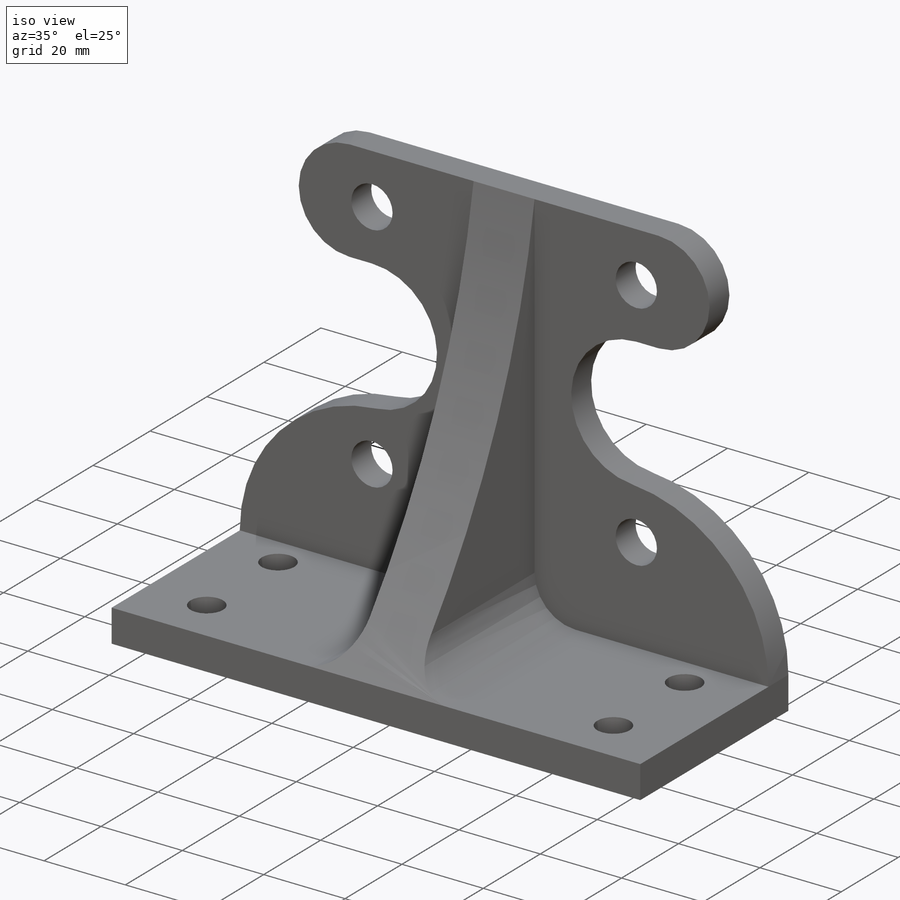
[diagram: iso view]
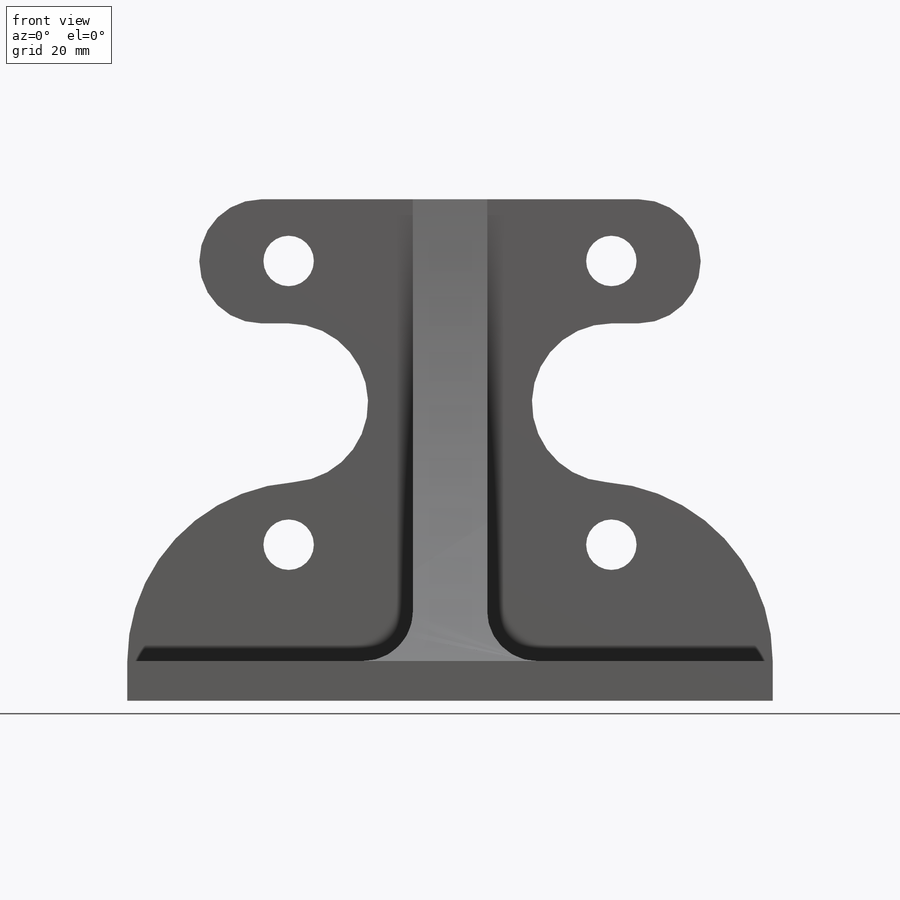
[diagram: front view]
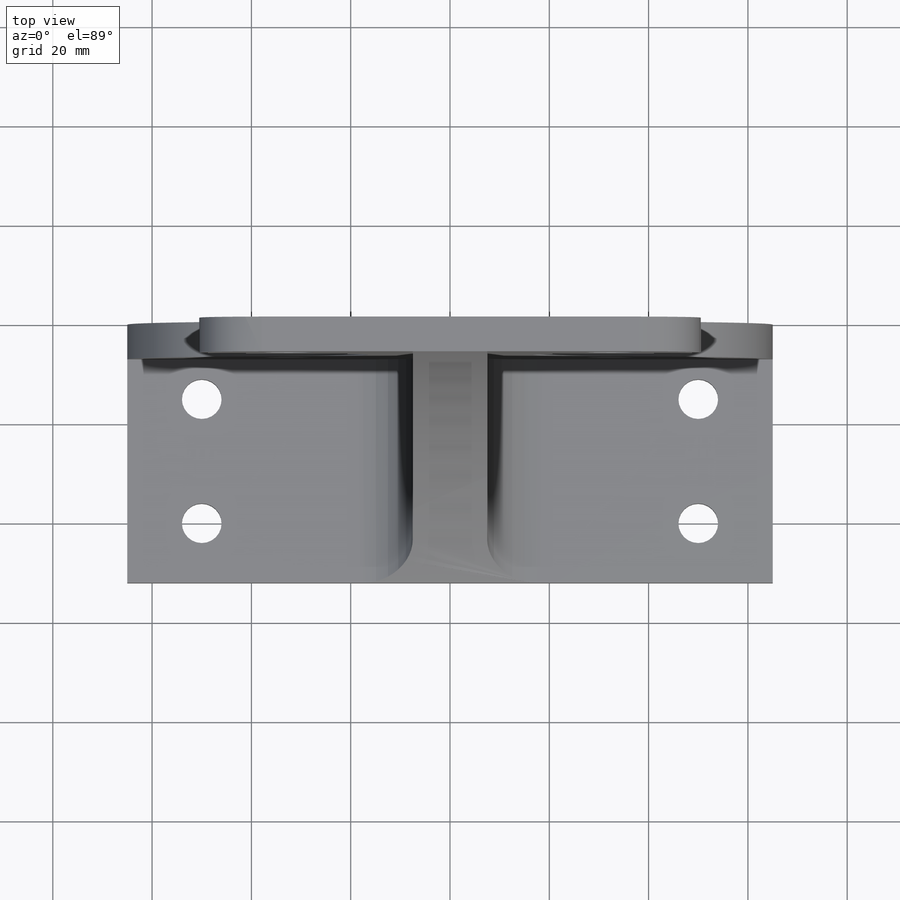
[diagram: top view]
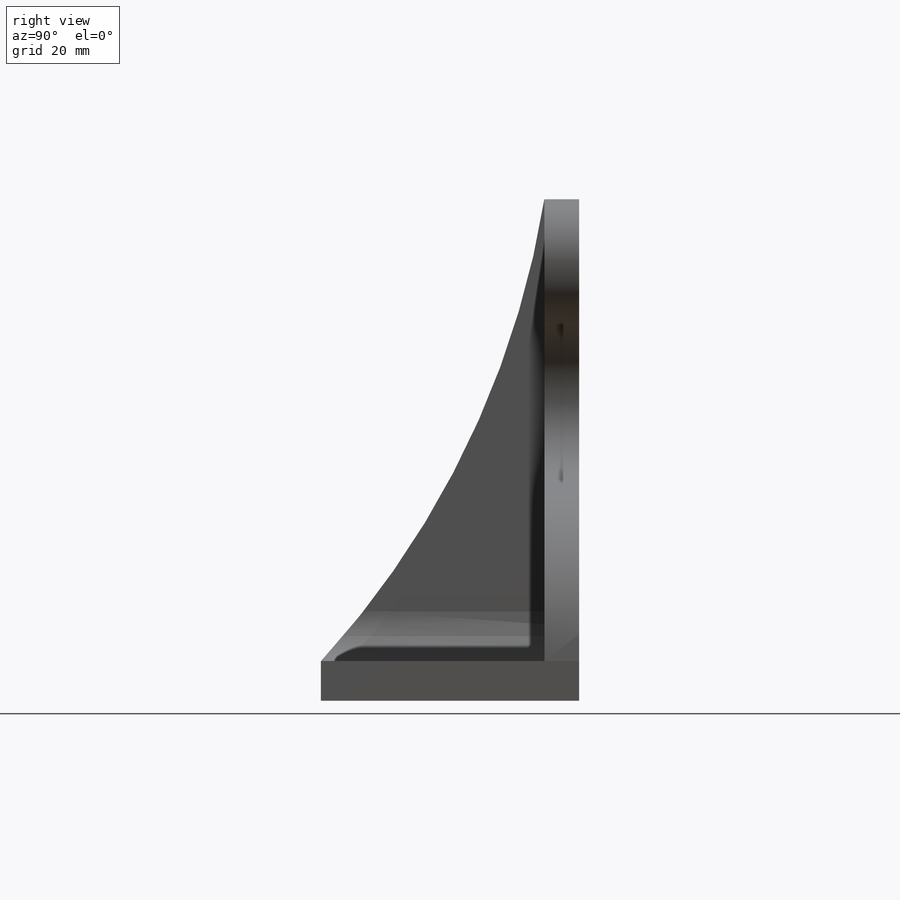
[diagram: right view]
SOLIDWORKS PART (.sldprt)
format: sldprt  version: not decoded by parser v0  size: 428,032 bytes
history: native  units: mm
features: sketch x9, cut_extrude x4, extrude x2, material x1, fillet x1 (+16 scaffold rows collapsed)
feature tree (33):
  scaffold x16  (default folders/planes/origin — collapsed)
  material  "6061-T6 (SS)"
  sketch  "Sketch1"  dims[D1=130.0mm D2=120.0mm]
  extrude  "Boss-Extrude1"  Depth=7mm
  sketch  "Sketch2"  dims[D1=26.924mm D3=10.16mm D2=57.15mm D4=32.5mm]
  cut_extrude  "Cut-Extrude1"  [1 undecoded]
  sketch  "Sketch4"  dims[D1=8.0mm]
  extrude  "Boss-Extrude2"  Depth=45mm
  sketch  "Sketch10"  dims[c1.D1=25.0mm c1.D2=45.0mm c1.D3=43.0mm c1.D4=34.0mm c1.D5=35.0mm c2.D1=16.0mm c2.D2=25.0mm c2.D3=22.0mm c3.D1=~0.658481mm c3.D2=38.0mm c3.D3=41.0mm]
  cut_extrude  "Cut-Extrude4"  Depth=10mm
  sketch  "Sketch9"  dims[D1=56.0mm]
  sketch  "Sketch11"  dims[D1=8.0mm D2=15.0mm D3=25.0mm D4=15.0mm]
  cut_extrude  "Cut-Extrude5"  Depth=15mm
  sketch  "Sketch13"  dims[D1=180.0mm D2=160.0mm]
  cut_extrude  "Cut-Extrude6"  [1 undecoded]
  fillet  "Fillet1"  Radius=10mm
  sketch  "Sketch15"  dims[D1=110.0mm D2=140.0mm]
  sketch  "Sketch16"
decode coverage: 13 of 16 modeling features carry decoded parameters
note: ~ marks probable driven/reference dimensions
note: 2 parameter values undecoded
note: suppression state not decoded; provenance and decode notes live in map.json
